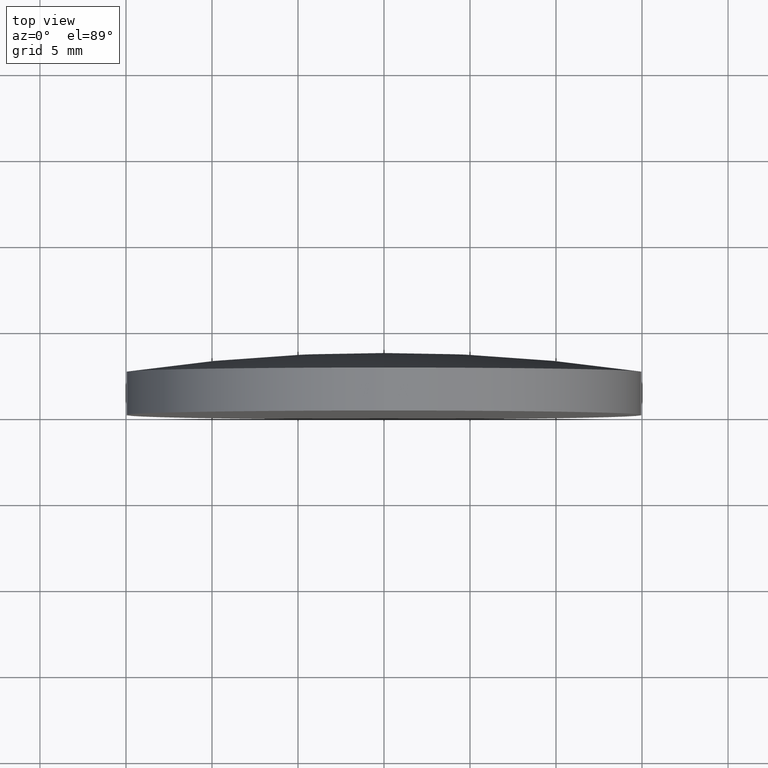
[diagram: clean part render]
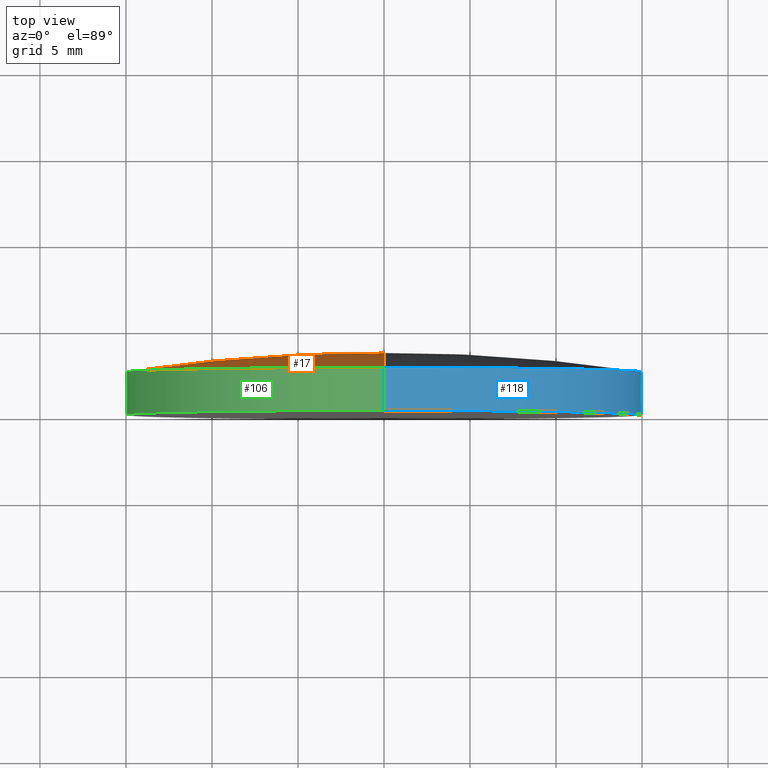
[diagram: same view with three faces highlighted in distinct colors, each labeled with its STEP entity id]
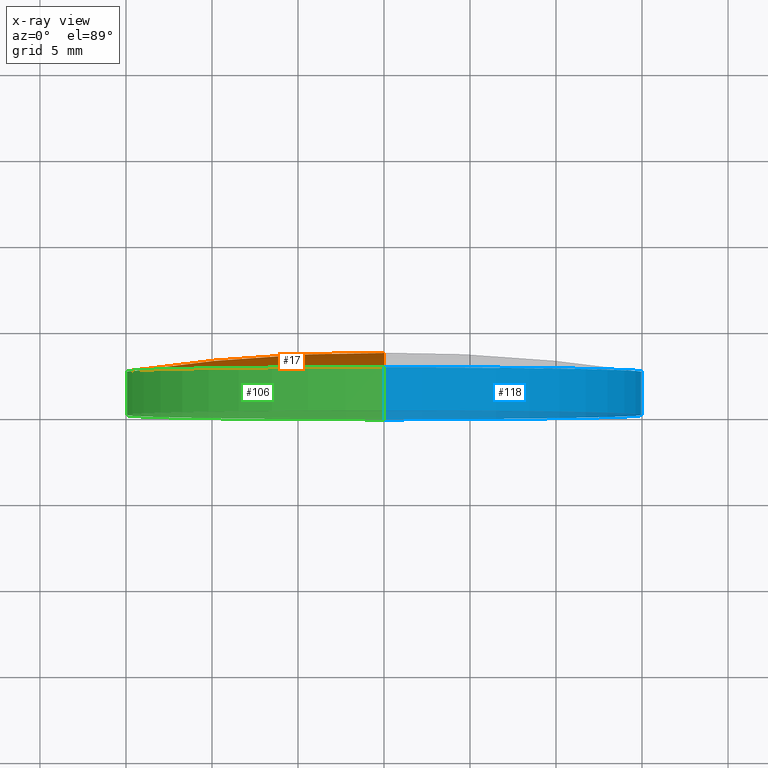
[diagram: x-ray of the same camera — body ghosted, the three highlighted faces saturated]
A machine part, top view with three faces highlighted in distinct colors.
The next image is the same camera in x-ray (body ghosted, the three faces saturated) — at least one of them is partly hidden behind the body in this view.
Their STEP definitions:

[orange] entity #17 — the highlighted toroidal blend (fillet) surface has major radius 0.0335 mm and minor (blend) radius 103.28 mm.
#7 = DIRECTION ( 'NONE',  ( -0.000000000000000000, 1.000000000000000000, -0.000000000000000000 ) ) ;
#13 = ORIENTED_EDGE ( 'NONE', *, *, #141, .T. ) ;
#14 = EDGE_LOOP ( 'NONE', ( #16, #140, #13 ) ) ;
#16 = ORIENTED_EDGE ( 'NONE', *, *, #27, .F. ) ;
#17 = ADVANCED_FACE ( 'NONE', ( #67 ), #200, .T. ) ;
#18 = DIRECTION ( 'NONE',  ( 0.000000000000000000, 0.000000000000000000, 1.000000000000000000 ) ) ;
#27 = EDGE_CURVE ( 'NONE', #50, #147, #162, .T. ) ;
#35 = EDGE_CURVE ( 'NONE', #50, #107, #156, .T. ) ;
#36 = DIRECTION ( 'NONE',  ( 1.000000000000000000, 0.000000000000000000, 1.224646799147353207E-16 ) ) ;
#50 = VERTEX_POINT ( 'NONE', #56 ) ;
#56 = CARTESIAN_POINT ( 'NONE',  ( 1.836970198721033533E-15, 2.500000000000000444, -15.00000000000003020 ) ) ;
#67 = FACE_OUTER_BOUND ( 'NONE', #14, .T. ) ;
#75 = AXIS2_PLACEMENT_3D ( 'NONE', #168, #185, #18 ) ;
#84 = AXIS2_PLACEMENT_3D ( 'NONE', #170, #153, #188 ) ;
#87 = CARTESIAN_POINT ( 'NONE',  ( 0.000000000000000000, -99.67999455626598149, 0.000000000000000000 ) ) ;
#89 = DIRECTION ( 'NONE',  ( 0.000000000000000000, 0.000000000000000000, 1.000000000000000000 ) ) ;
#107 = VERTEX_POINT ( 'NONE', #169 ) ;
#126 = CARTESIAN_POINT ( 'NONE',  ( -4.106600044364992052E-18, -99.67999455626598149, 0.03353293412618370273 ) ) ;
#139 = AXIS2_PLACEMENT_3D ( 'NONE', #87, #7, #89 ) ;
#140 = ORIENTED_EDGE ( 'NONE', *, *, #35, .T. ) ;
#141 = EDGE_CURVE ( 'NONE', #107, #147, #171, .T. ) ;
#147 = VERTEX_POINT ( 'NONE', #186 ) ;
#150 = AXIS2_PLACEMENT_3D ( 'NONE', #126, #36, #193 ) ;
#153 = DIRECTION ( 'NONE',  ( -1.000000000000000000, 0.000000000000000000, 0.000000000000000000 ) ) ;
#156 = CIRCLE ( 'NONE', #75, 15.00000000000000000 ) ;
#162 = CIRCLE ( 'NONE', #150, 103.2800000000000296 ) ;
#168 = CARTESIAN_POINT ( 'NONE',  ( 0.000000000000000000, 2.499999999999998224, 0.000000000000000000 ) ) ;
#169 = CARTESIAN_POINT ( 'NONE',  ( 0.000000000000000000, 2.500000000000000444, 15.00000000000003020 ) ) ;
#170 = CARTESIAN_POINT ( 'NONE',  ( 0.000000000000000000, -99.67999455626598149, -0.03353293412618370273 ) ) ;
#171 = CIRCLE ( 'NONE', #84, 103.2800000000000296 ) ;
#185 = DIRECTION ( 'NONE',  ( -0.000000000000000000, 1.000000000000000000, -0.000000000000000000 ) ) ;
#186 = CARTESIAN_POINT ( 'NONE',  ( 0.000000000000000000, 3.600000000000000089, 0.000000000000000000 ) ) ;
#188 = DIRECTION ( 'NONE',  ( 0.000000000000000000, 0.000000000000000000, 1.000000000000000000 ) ) ;
#193 = DIRECTION ( 'NONE',  ( 1.224646799147353207E-16, 0.000000000000000000, -1.000000000000000000 ) ) ;
#200 = TOROIDAL_SURFACE ( 'NONE', #139, -0.03353293412618370273, 103.2800000000000296 ) ;

[blue] entity #118 — the highlighted cylindrical surface (partial cylindrical patch) has radius 15 mm, axis along (-0, 1, -0).
#4 = CARTESIAN_POINT ( 'NONE',  ( 0.000000000000000000, 3.600000000000000089, 15.00000000000000000 ) ) ;
#5 = DIRECTION ( 'NONE',  ( 0.000000000000000000, 0.000000000000000000, 1.000000000000000000 ) ) ;
#21 = DIRECTION ( 'NONE',  ( -0.000000000000000000, 1.000000000000000000, -0.000000000000000000 ) ) ;
#25 = AXIS2_PLACEMENT_3D ( 'NONE', #90, #58, #136 ) ;
#39 = AXIS2_PLACEMENT_3D ( 'NONE', #71, #86, #128 ) ;
#40 = VECTOR ( 'NONE', #21, 1000.000000000000000 ) ;
#41 = FACE_OUTER_BOUND ( 'NONE', #65, .T. ) ;
#42 = DIRECTION ( 'NONE',  ( -0.000000000000000000, 1.000000000000000000, -0.000000000000000000 ) ) ;
#50 = VERTEX_POINT ( 'NONE', #56 ) ;
#52 = EDGE_CURVE ( 'NONE', #124, #107, #127, .T. ) ;
#54 = CYLINDRICAL_SURFACE ( 'NONE', #92, 15.00000000000000000 ) ;
#56 = CARTESIAN_POINT ( 'NONE',  ( 1.836970198721033533E-15, 2.500000000000000444, -15.00000000000003020 ) ) ;
#57 = CIRCLE ( 'NONE', #39, 15.00000000000000000 ) ;
#58 = DIRECTION ( 'NONE',  ( -0.000000000000000000, 1.000000000000000000, -0.000000000000000000 ) ) ;
#65 = EDGE_LOOP ( 'NONE', ( #138, #135, #137, #201 ) ) ;
#70 = CARTESIAN_POINT ( 'NONE',  ( 0.000000000000000000, -1.734723475976807094E-15, 15.00000000000000000 ) ) ;
#71 = CARTESIAN_POINT ( 'NONE',  ( 0.000000000000000000, -1.734723475976807094E-15, 0.000000000000000000 ) ) ;
#73 = EDGE_CURVE ( 'NONE', #124, #148, #57, .T. ) ;
#86 = DIRECTION ( 'NONE',  ( -0.000000000000000000, 1.000000000000000000, -0.000000000000000000 ) ) ;
#90 = CARTESIAN_POINT ( 'NONE',  ( 0.000000000000000000, 2.499999999999998224, 0.000000000000000000 ) ) ;
#92 = AXIS2_PLACEMENT_3D ( 'NONE', #142, #143, #5 ) ;
#100 = LINE ( 'NONE', #157, #40 ) ;
#107 = VERTEX_POINT ( 'NONE', #169 ) ;
#118 = ADVANCED_FACE ( 'NONE', ( #41 ), #54, .T. ) ;
#124 = VERTEX_POINT ( 'NONE', #70 ) ;
#127 = LINE ( 'NONE', #4, #183 ) ;
#128 = DIRECTION ( 'NONE',  ( 0.000000000000000000, 0.000000000000000000, 1.000000000000000000 ) ) ;
#129 = CARTESIAN_POINT ( 'NONE',  ( 1.836970198721029589E-15, -1.734723475976807094E-15, -15.00000000000000000 ) ) ;
#130 = CIRCLE ( 'NONE', #25, 15.00000000000000000 ) ;
#135 = ORIENTED_EDGE ( 'NONE', *, *, #173, .T. ) ;
#136 = DIRECTION ( 'NONE',  ( 0.000000000000000000, 0.000000000000000000, 1.000000000000000000 ) ) ;
#137 = ORIENTED_EDGE ( 'NONE', *, *, #192, .F. ) ;
#138 = ORIENTED_EDGE ( 'NONE', *, *, #73, .T. ) ;
#142 = CARTESIAN_POINT ( 'NONE',  ( 0.000000000000000000, 3.600000000000000089, 0.000000000000000000 ) ) ;
#143 = DIRECTION ( 'NONE',  ( -0.000000000000000000, 1.000000000000000000, -0.000000000000000000 ) ) ;
#148 = VERTEX_POINT ( 'NONE', #129 ) ;
#157 = CARTESIAN_POINT ( 'NONE',  ( 1.836970198721029589E-15, 3.600000000000000089, -15.00000000000000000 ) ) ;
#169 = CARTESIAN_POINT ( 'NONE',  ( 0.000000000000000000, 2.500000000000000444, 15.00000000000003020 ) ) ;
#173 = EDGE_CURVE ( 'NONE', #148, #50, #100, .T. ) ;
#183 = VECTOR ( 'NONE', #42, 1000.000000000000000 ) ;
#192 = EDGE_CURVE ( 'NONE', #107, #50, #130, .T. ) ;
#201 = ORIENTED_EDGE ( 'NONE', *, *, #52, .F. ) ;

[green] entity #106 — the highlighted cylindrical surface (partial cylindrical patch) has radius 15 mm, axis along (-0, 1, -0).
#3 = DIRECTION ( 'NONE',  ( -0.000000000000000000, 1.000000000000000000, -0.000000000000000000 ) ) ;
#4 = CARTESIAN_POINT ( 'NONE',  ( 0.000000000000000000, 3.600000000000000089, 15.00000000000000000 ) ) ;
#6 = CYLINDRICAL_SURFACE ( 'NONE', #120, 15.00000000000000000 ) ;
#9 = EDGE_CURVE ( 'NONE', #148, #124, #190, .T. ) ;
#15 = AXIS2_PLACEMENT_3D ( 'NONE', #59, #3, #99 ) ;
#18 = DIRECTION ( 'NONE',  ( 0.000000000000000000, 0.000000000000000000, 1.000000000000000000 ) ) ;
#21 = DIRECTION ( 'NONE',  ( -0.000000000000000000, 1.000000000000000000, -0.000000000000000000 ) ) ;
#35 = EDGE_CURVE ( 'NONE', #50, #107, #156, .T. ) ;
#38 = ORIENTED_EDGE ( 'NONE', *, *, #35, .F. ) ;
#40 = VECTOR ( 'NONE', #21, 1000.000000000000000 ) ;
#42 = DIRECTION ( 'NONE',  ( -0.000000000000000000, 1.000000000000000000, -0.000000000000000000 ) ) ;
#50 = VERTEX_POINT ( 'NONE', #56 ) ;
#51 = EDGE_LOOP ( 'NONE', ( #83, #81, #149, #38 ) ) ;
#52 = EDGE_CURVE ( 'NONE', #124, #107, #127, .T. ) ;
#56 = CARTESIAN_POINT ( 'NONE',  ( 1.836970198721033533E-15, 2.500000000000000444, -15.00000000000003020 ) ) ;
#59 = CARTESIAN_POINT ( 'NONE',  ( 0.000000000000000000, -1.734723475976807094E-15, 0.000000000000000000 ) ) ;
#69 = DIRECTION ( 'NONE',  ( 0.000000000000000000, 0.000000000000000000, 1.000000000000000000 ) ) ;
#70 = CARTESIAN_POINT ( 'NONE',  ( 0.000000000000000000, -1.734723475976807094E-15, 15.00000000000000000 ) ) ;
#72 = FACE_OUTER_BOUND ( 'NONE', #51, .T. ) ;
#75 = AXIS2_PLACEMENT_3D ( 'NONE', #168, #185, #18 ) ;
#81 = ORIENTED_EDGE ( 'NONE', *, *, #9, .T. ) ;
#83 = ORIENTED_EDGE ( 'NONE', *, *, #173, .F. ) ;
#99 = DIRECTION ( 'NONE',  ( 0.000000000000000000, 0.000000000000000000, 1.000000000000000000 ) ) ;
#100 = LINE ( 'NONE', #157, #40 ) ;
#102 = CARTESIAN_POINT ( 'NONE',  ( 0.000000000000000000, 3.600000000000000089, 0.000000000000000000 ) ) ;
#106 = ADVANCED_FACE ( 'NONE', ( #72 ), #6, .T. ) ;
#107 = VERTEX_POINT ( 'NONE', #169 ) ;
#120 = AXIS2_PLACEMENT_3D ( 'NONE', #102, #131, #69 ) ;
#124 = VERTEX_POINT ( 'NONE', #70 ) ;
#127 = LINE ( 'NONE', #4, #183 ) ;
#129 = CARTESIAN_POINT ( 'NONE',  ( 1.836970198721029589E-15, -1.734723475976807094E-15, -15.00000000000000000 ) ) ;
#131 = DIRECTION ( 'NONE',  ( -0.000000000000000000, 1.000000000000000000, -0.000000000000000000 ) ) ;
#148 = VERTEX_POINT ( 'NONE', #129 ) ;
#149 = ORIENTED_EDGE ( 'NONE', *, *, #52, .T. ) ;
#156 = CIRCLE ( 'NONE', #75, 15.00000000000000000 ) ;
#157 = CARTESIAN_POINT ( 'NONE',  ( 1.836970198721029589E-15, 3.600000000000000089, -15.00000000000000000 ) ) ;
#168 = CARTESIAN_POINT ( 'NONE',  ( 0.000000000000000000, 2.499999999999998224, 0.000000000000000000 ) ) ;
#169 = CARTESIAN_POINT ( 'NONE',  ( 0.000000000000000000, 2.500000000000000444, 15.00000000000003020 ) ) ;
#173 = EDGE_CURVE ( 'NONE', #148, #50, #100, .T. ) ;
#183 = VECTOR ( 'NONE', #42, 1000.000000000000000 ) ;
#185 = DIRECTION ( 'NONE',  ( -0.000000000000000000, 1.000000000000000000, -0.000000000000000000 ) ) ;
#190 = CIRCLE ( 'NONE', #15, 15.00000000000000000 ) ;